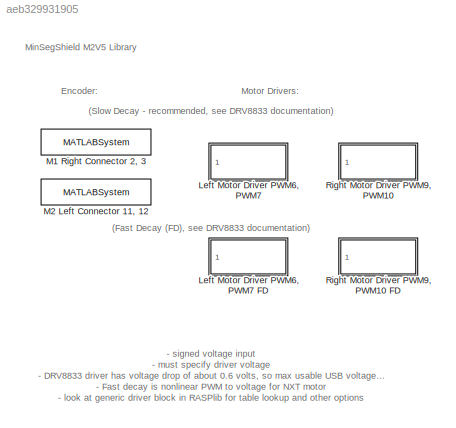
MODEL slx_aeb329931905
KIND library
CONFIG AbsTol = auto
CONFIG FixedStep = auto
CONFIG MaxStep = auto
CONFIG MinStep = auto
CONFIG RelTol = 1e-3
CONFIG SampleTimeConstraint = Unconstrained
CONFIG Solver = ode45
CONFIG SolverMode = Auto
CONFIG SolverName = ode45
CONFIG StartTime = 0.0
CONFIG StopTime = 10.0
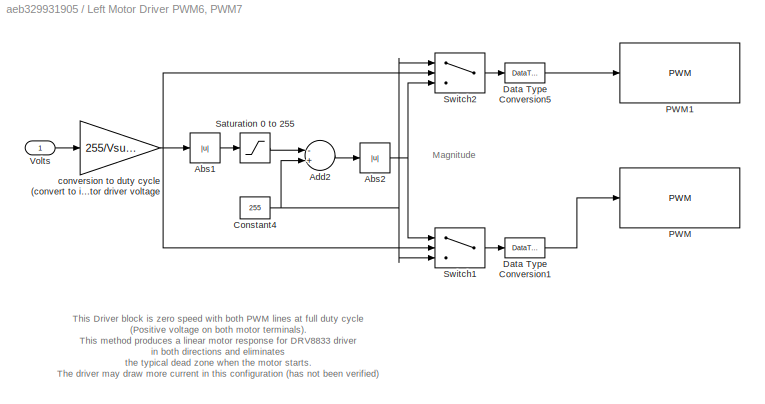
BLOCK [SubSystem] Left Motor Driver PWM6, PWM7
  Ports = [1]
  RequestExecContextInheritance = off
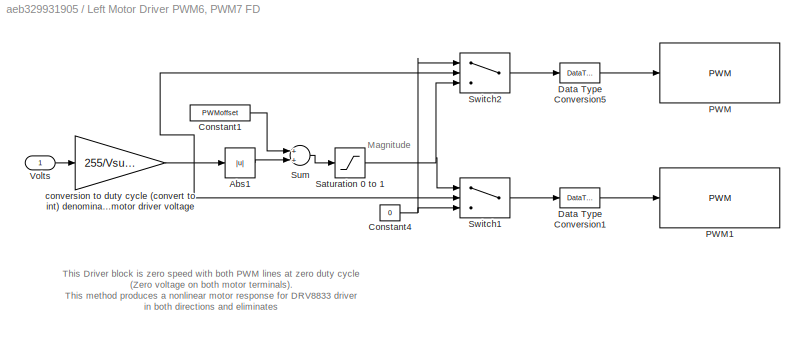
BLOCK [SubSystem] Left Motor Driver PWM6, PWM7 FD
  Ports = [1]
  RequestExecContextInheritance = off
BLOCK [Abs] Left Motor Driver PWM6, PWM7 FD/Abs1
  SaturateOnIntegerOverflow = off
BLOCK [Constant] Left Motor Driver PWM6, PWM7 FD/Constant1
  Value = PWMoffset
BLOCK [Constant] Left Motor Driver PWM6, PWM7 FD/Constant4
  Value = 0
BLOCK [DataTypeConversion] Left Motor Driver PWM6, PWM7 FD/Data Type Conversion1
  OutDataTypeStr = uint8
  RndMeth = Floor
  SaturateOnIntegerOverflow = off
BLOCK [DataTypeConversion] Left Motor Driver PWM6, PWM7 FD/Data Type Conversion5
  OutDataTypeStr = uint8
  RndMeth = Floor
  SaturateOnIntegerOverflow = off
BLOCK [Reference] Left Motor Driver PWM6, PWM7 FD/PWM  REF=arduinolib/PWM
  Ports = [1]
  SourceBlock = arduinolib/PWM
  SourceType = Arduino PWM
  blockPlatform = arduino
  pinNumber = 6
BLOCK [Reference] Left Motor Driver PWM6, PWM7 FD/PWM1  REF=arduinolib/PWM
  Ports = [1]
  SourceBlock = arduinolib/PWM
  SourceType = Arduino PWM
  blockPlatform = arduino
  pinNumber = 7
BLOCK [Saturate] Left Motor Driver PWM6, PWM7 FD/Saturation 0 to 1
  InputPortMap = u0
  LowerLimit = 0
  Ports = [1, 1]
  UpperLimit = 255
BLOCK [Sum] Left Motor Driver PWM6, PWM7 FD/Sum
  InputSameDT = off
  OutDataTypeStr = Inherit: Inherit via internal rule
  Ports = [2, 1]
  SaturateOnIntegerOverflow = off
BLOCK [Switch] Left Motor Driver PWM6, PWM7 FD/Switch1
  InputSameDT = off
  SaturateOnIntegerOverflow = off
BLOCK [Switch] Left Motor Driver PWM6, PWM7 FD/Switch2
  InputSameDT = off
  SaturateOnIntegerOverflow = off
BLOCK [Inport] Left Motor Driver PWM6, PWM7 FD/Volts
  IconDisplay = Port number
BLOCK [Gain] Left Motor Driver PWM6, PWM7 FD/conversion to duty cycle (convert to int) denominator is motor driver voltage
  Gain = 255/Vsupply
  OutDataTypeStr = int16
  ParamDataTypeStr = Inherit: Inherit via internal rule
  SaturateOnIntegerOverflow = off
BLOCK [Abs] Left Motor Driver PWM6, PWM7/Abs1
  SaturateOnIntegerOverflow = off
BLOCK [Abs] Left Motor Driver PWM6, PWM7/Abs2
  SaturateOnIntegerOverflow = off
BLOCK [Sum] Left Motor Driver PWM6, PWM7/Add2
  InputSameDT = off
  Inputs = -+
  OutDataTypeStr = Inherit: Inherit via internal rule
  Ports = [2, 1]
  SaturateOnIntegerOverflow = off
BLOCK [Constant] Left Motor Driver PWM6, PWM7/Constant4
  Value = 255
BLOCK [DataTypeConversion] Left Motor Driver PWM6, PWM7/Data Type Conversion1
  OutDataTypeStr = uint8
  RndMeth = Floor
  SaturateOnIntegerOverflow = off
BLOCK [DataTypeConversion] Left Motor Driver PWM6, PWM7/Data Type Conversion5
  OutDataTypeStr = uint8
  RndMeth = Floor
  SaturateOnIntegerOverflow = off
BLOCK [Reference] Left Motor Driver PWM6, PWM7/PWM  REF=arduinolib/PWM
  Ports = [1]
  SourceBlock = arduinolib/PWM
  SourceType = Arduino PWM
  blockPlatform = arduino
  pinNumber = 7
BLOCK [Reference] Left Motor Driver PWM6, PWM7/PWM1  REF=arduinolib/PWM
  Ports = [1]
  SourceBlock = arduinolib/PWM
  SourceType = Arduino PWM
  blockPlatform = arduino
  pinNumber = 6
BLOCK [Saturate] Left Motor Driver PWM6, PWM7/Saturation 0 to 255
  InputPortMap = u0
  LowerLimit = 0
  Ports = [1, 1]
  UpperLimit = 255
BLOCK [Switch] Left Motor Driver PWM6, PWM7/Switch1
  InputSameDT = off
  SaturateOnIntegerOverflow = off
BLOCK [Switch] Left Motor Driver PWM6, PWM7/Switch2
  InputSameDT = off
  SaturateOnIntegerOverflow = off
BLOCK [Inport] Left Motor Driver PWM6, PWM7/Volts
  IconDisplay = Port number
BLOCK [Gain] Left Motor Driver PWM6, PWM7/conversion to duty cycle (convert to int) denominator is motor driver voltage
  Gain = 255/Vsupply
  OutDataTypeStr = int16
  ParamDataTypeStr = Inherit: Inherit via internal rule
  SaturateOnIntegerOverflow = off
BLOCK [MATLABSystem] M1 Right Connector 2, 3
  Encoder = 0
  MaskDisplay = disp('soEncoder');\nport_label('output',1,'y');
  MaskType = Encoder_arduino
  PinA = 2
  PinB = 3
  Ports = [0, 1]
  System = Encoder_arduino
BLOCK [MATLABSystem] M2 Left Connector 11, 12
  Encoder = 4
  MaskDisplay = disp('soEncoder');\nport_label('output',1,'y');
  MaskType = Encoder_arduino
  PinA = 11
  PinB = 12
  Ports = [0, 1]
  System = Encoder_arduino
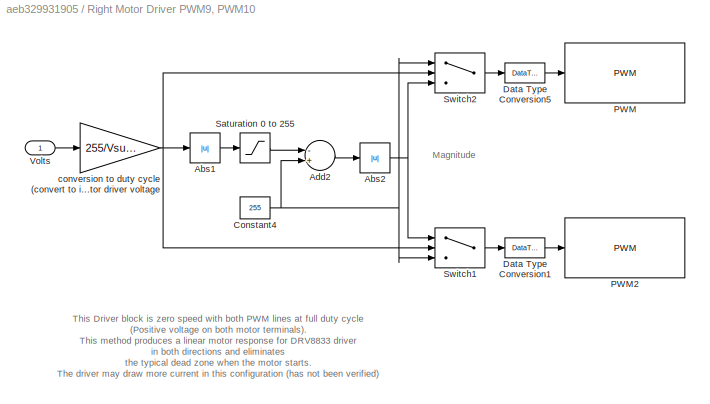
BLOCK [SubSystem] Right Motor Driver PWM9, PWM10 
  Ports = [1]
  RequestExecContextInheritance = off
BLOCK [Abs] Right Motor Driver PWM9, PWM10 /Abs1
  SaturateOnIntegerOverflow = off
BLOCK [Abs] Right Motor Driver PWM9, PWM10 /Abs2
  SaturateOnIntegerOverflow = off
BLOCK [Sum] Right Motor Driver PWM9, PWM10 /Add2
  InputSameDT = off
  Inputs = -+
  OutDataTypeStr = Inherit: Inherit via internal rule
  Ports = [2, 1]
  SaturateOnIntegerOverflow = off
BLOCK [Constant] Right Motor Driver PWM9, PWM10 /Constant4
  Value = 255
BLOCK [DataTypeConversion] Right Motor Driver PWM9, PWM10 /Data Type Conversion1
  OutDataTypeStr = uint8
  RndMeth = Floor
  SaturateOnIntegerOverflow = off
BLOCK [DataTypeConversion] Right Motor Driver PWM9, PWM10 /Data Type Conversion5
  OutDataTypeStr = uint8
  RndMeth = Floor
  SaturateOnIntegerOverflow = off
BLOCK [Reference] Right Motor Driver PWM9, PWM10 /PWM  REF=arduinolib/PWM
  Ports = [1]
  SourceBlock = arduinolib/PWM
  SourceType = Arduino PWM
  blockPlatform = arduino
  pinNumber = 9
BLOCK [Reference] Right Motor Driver PWM9, PWM10 /PWM2  REF=arduinolib/PWM
  Ports = [1]
  SourceBlock = arduinolib/PWM
  SourceType = Arduino PWM
  blockPlatform = arduino
  pinNumber = 10
BLOCK [Saturate] Right Motor Driver PWM9, PWM10 /Saturation 0 to 255
  InputPortMap = u0
  LowerLimit = 0
  Ports = [1, 1]
  UpperLimit = 255
BLOCK [Switch] Right Motor Driver PWM9, PWM10 /Switch1
  InputSameDT = off
  SaturateOnIntegerOverflow = off
BLOCK [Switch] Right Motor Driver PWM9, PWM10 /Switch2
  InputSameDT = off
  SaturateOnIntegerOverflow = off
BLOCK [Inport] Right Motor Driver PWM9, PWM10 /Volts
  IconDisplay = Port number
BLOCK [Gain] Right Motor Driver PWM9, PWM10 /conversion to duty cycle (convert to int) denominator is motor driver voltage
  Gain = 255/Vsupply
  OutDataTypeStr = int16
  ParamDataTypeStr = Inherit: Inherit via internal rule
  SaturateOnIntegerOverflow = off
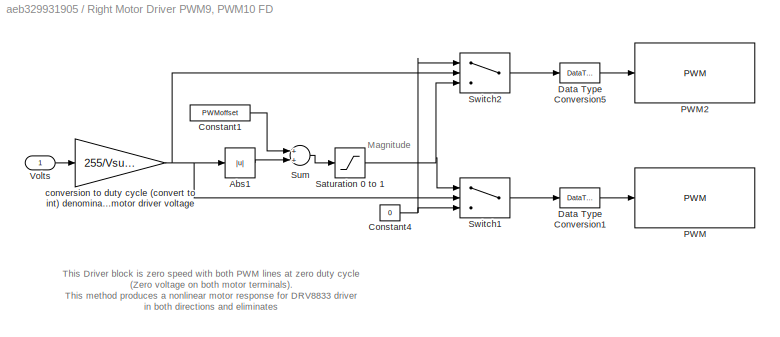
BLOCK [SubSystem] Right Motor Driver PWM9, PWM10 FD
  Ports = [1]
  RequestExecContextInheritance = off
BLOCK [Abs] Right Motor Driver PWM9, PWM10 FD/Abs1
  SaturateOnIntegerOverflow = off
BLOCK [Constant] Right Motor Driver PWM9, PWM10 FD/Constant1
  Value = PWMoffset
BLOCK [Constant] Right Motor Driver PWM9, PWM10 FD/Constant4
  Value = 0
BLOCK [DataTypeConversion] Right Motor Driver PWM9, PWM10 FD/Data Type Conversion1
  OutDataTypeStr = uint8
  RndMeth = Floor
  SaturateOnIntegerOverflow = off
BLOCK [DataTypeConversion] Right Motor Driver PWM9, PWM10 FD/Data Type Conversion5
  OutDataTypeStr = uint8
  RndMeth = Floor
  SaturateOnIntegerOverflow = off
BLOCK [Reference] Right Motor Driver PWM9, PWM10 FD/PWM  REF=arduinolib/PWM
  Ports = [1]
  SourceBlock = arduinolib/PWM
  SourceType = Arduino PWM
  blockPlatform = arduino
  pinNumber = 10
BLOCK [Reference] Right Motor Driver PWM9, PWM10 FD/PWM2  REF=arduinolib/PWM
  Ports = [1]
  SourceBlock = arduinolib/PWM
  SourceType = Arduino PWM
  blockPlatform = arduino
  pinNumber = 9
BLOCK [Saturate] Right Motor Driver PWM9, PWM10 FD/Saturation 0 to 1
  InputPortMap = u0
  LowerLimit = 0
  Ports = [1, 1]
  UpperLimit = 255
BLOCK [Sum] Right Motor Driver PWM9, PWM10 FD/Sum
  InputSameDT = off
  OutDataTypeStr = Inherit: Inherit via internal rule
  Ports = [2, 1]
  SaturateOnIntegerOverflow = off
BLOCK [Switch] Right Motor Driver PWM9, PWM10 FD/Switch1
  InputSameDT = off
  SaturateOnIntegerOverflow = off
BLOCK [Switch] Right Motor Driver PWM9, PWM10 FD/Switch2
  InputSameDT = off
  SaturateOnIntegerOverflow = off
BLOCK [Inport] Right Motor Driver PWM9, PWM10 FD/Volts
  IconDisplay = Port number
BLOCK [Gain] Right Motor Driver PWM9, PWM10 FD/conversion to duty cycle (convert to int) denominator is motor driver voltage
  Gain = 255/Vsupply
  OutDataTypeStr = int16
  ParamDataTypeStr = Inherit: Inherit via internal rule
  SaturateOnIntegerOverflow = off
ANNOTATION (root): (Fast Decay (FD), see DRV8833 documentation)
ANNOTATION (root): (Slow Decay - recommended, see DRV8833 documentation)
ANNOTATION (root): - signed voltage input - must specify driver voltage - DRV8833 driver has voltage drop of about 0.6 volts, so max usable USB voltage is about 3.9 volts - Fast decay is nonlinear PWM to voltage for NXT motor - look at generic driver block in RASPlib for table lookup and other options
ANNOTATION (root): MinSegShield M2V5 Library
ANNOTATION (root): Encoder:
ANNOTATION (root): Motor Drivers:
ANNOTATION Left Motor Driver PWM6, PWM7: Magnitude
ANNOTATION Left Motor Driver PWM6, PWM7: This Driver block is zero speed with both PWM lines at full duty cycle (Positive voltage on both motor terminals). This method produces a linear motor response for DRV8833 driver in both directions and eliminates the typical dead zone when the motor starts. The driver may draw more current in this configuration (has not been verified) The SN754410 driver this has no effect, so the driver could alt...<+76ch>
ANNOTATION Left Motor Driver PWM6, PWM7 FD: Magnitude
ANNOTATION Left Motor Driver PWM6, PWM7 FD: This Driver block is zero speed with both PWM lines at zero duty cycle (Zero voltage on both motor terminals). This method produces a nonlinear motor response for DRV8833 driver in both directions and eliminates
ANNOTATION Right Motor Driver PWM9, PWM10 : Magnitude
ANNOTATION Right Motor Driver PWM9, PWM10 : This Driver block is zero speed with both PWM lines at full duty cycle (Positive voltage on both motor terminals). This method produces a linear motor response for DRV8833 driver in both directions and eliminates the typical dead zone when the motor starts. The driver may draw more current in this configuration (has not been verified) The SN754410 driver this has no effect, so the driver could alt...<+76ch>
ANNOTATION Right Motor Driver PWM9, PWM10 FD: Magnitude
ANNOTATION Right Motor Driver PWM9, PWM10 FD: This Driver block is zero speed with both PWM lines at zero duty cycle (Zero voltage on both motor terminals). This method produces a nonlinear motor response for DRV8833 driver in both directions and eliminates
LINE Left Motor Driver PWM6, PWM7 FD/Abs1:1 -> Left Motor Driver PWM6, PWM7 FD/Sum:2
LINE Left Motor Driver PWM6, PWM7 FD/Constant1:1 -> Left Motor Driver PWM6, PWM7 FD/Sum:1
NET Left Motor Driver PWM6, PWM7 FD/Constant4:1 -> Left Motor Driver PWM6, PWM7 FD/Switch1:3, Left Motor Driver PWM6, PWM7 FD/Switch2:1
LINE Left Motor Driver PWM6, PWM7 FD/Data Type Conversion1:1 -> Left Motor Driver PWM6, PWM7 FD/PWM1:1
LINE Left Motor Driver PWM6, PWM7 FD/Data Type Conversion5:1 -> Left Motor Driver PWM6, PWM7 FD/PWM:1
NET Left Motor Driver PWM6, PWM7 FD/Saturation 0 to 1:1 -> Left Motor Driver PWM6, PWM7 FD/Switch1:1, Left Motor Driver PWM6, PWM7 FD/Switch2:3
LINE Left Motor Driver PWM6, PWM7 FD/Sum:1 -> Left Motor Driver PWM6, PWM7 FD/Saturation 0 to 1:1
LINE Left Motor Driver PWM6, PWM7 FD/Switch1:1 -> Left Motor Driver PWM6, PWM7 FD/Data Type Conversion1:1
LINE Left Motor Driver PWM6, PWM7 FD/Switch2:1 -> Left Motor Driver PWM6, PWM7 FD/Data Type Conversion5:1
LINE Left Motor Driver PWM6, PWM7 FD/Volts:1 -> Left Motor Driver PWM6, PWM7 FD/conversion to duty cycle (convert to int) denominator is motor driver voltage:1
NET Left Motor Driver PWM6, PWM7 FD/conversion to duty cycle (convert to int) denominator is motor driver voltage:1 -> Left Motor Driver PWM6, PWM7 FD/Abs1:1, Left Motor Driver PWM6, PWM7 FD/Switch1:2, Left Motor Driver PWM6, PWM7 FD/Switch2:2
LINE Left Motor Driver PWM6, PWM7/Abs1:1 -> Left Motor Driver PWM6, PWM7/Saturation 0 to 255:1
NET Left Motor Driver PWM6, PWM7/Abs2:1 -> Left Motor Driver PWM6, PWM7/Switch1:1, Left Motor Driver PWM6, PWM7/Switch2:3
LINE Left Motor Driver PWM6, PWM7/Add2:1 -> Left Motor Driver PWM6, PWM7/Abs2:1
NET Left Motor Driver PWM6, PWM7/Constant4:1 -> Left Motor Driver PWM6, PWM7/Add2:2, Left Motor Driver PWM6, PWM7/Switch1:3, Left Motor Driver PWM6, PWM7/Switch2:1
LINE Left Motor Driver PWM6, PWM7/Data Type Conversion1:1 -> Left Motor Driver PWM6, PWM7/PWM:1
LINE Left Motor Driver PWM6, PWM7/Data Type Conversion5:1 -> Left Motor Driver PWM6, PWM7/PWM1:1
LINE Left Motor Driver PWM6, PWM7/Saturation 0 to 255:1 -> Left Motor Driver PWM6, PWM7/Add2:1
LINE Left Motor Driver PWM6, PWM7/Switch1:1 -> Left Motor Driver PWM6, PWM7/Data Type Conversion1:1
LINE Left Motor Driver PWM6, PWM7/Switch2:1 -> Left Motor Driver PWM6, PWM7/Data Type Conversion5:1
LINE Left Motor Driver PWM6, PWM7/Volts:1 -> Left Motor Driver PWM6, PWM7/conversion to duty cycle (convert to int) denominator is motor driver voltage:1
NET Left Motor Driver PWM6, PWM7/conversion to duty cycle (convert to int) denominator is motor driver voltage:1 -> Left Motor Driver PWM6, PWM7/Abs1:1, Left Motor Driver PWM6, PWM7/Switch1:2, Left Motor Driver PWM6, PWM7/Switch2:2
LINE Right Motor Driver PWM9, PWM10 /Abs1:1 -> Right Motor Driver PWM9, PWM10 /Saturation 0 to 255:1
NET Right Motor Driver PWM9, PWM10 /Abs2:1 -> Right Motor Driver PWM9, PWM10 /Switch1:1, Right Motor Driver PWM9, PWM10 /Switch2:3
LINE Right Motor Driver PWM9, PWM10 /Add2:1 -> Right Motor Driver PWM9, PWM10 /Abs2:1
NET Right Motor Driver PWM9, PWM10 /Constant4:1 -> Right Motor Driver PWM9, PWM10 /Add2:2, Right Motor Driver PWM9, PWM10 /Switch1:3, Right Motor Driver PWM9, PWM10 /Switch2:1
LINE Right Motor Driver PWM9, PWM10 /Data Type Conversion1:1 -> Right Motor Driver PWM9, PWM10 /PWM2:1
LINE Right Motor Driver PWM9, PWM10 /Data Type Conversion5:1 -> Right Motor Driver PWM9, PWM10 /PWM:1
LINE Right Motor Driver PWM9, PWM10 /Saturation 0 to 255:1 -> Right Motor Driver PWM9, PWM10 /Add2:1
LINE Right Motor Driver PWM9, PWM10 /Switch1:1 -> Right Motor Driver PWM9, PWM10 /Data Type Conversion1:1
LINE Right Motor Driver PWM9, PWM10 /Switch2:1 -> Right Motor Driver PWM9, PWM10 /Data Type Conversion5:1
LINE Right Motor Driver PWM9, PWM10 /Volts:1 -> Right Motor Driver PWM9, PWM10 /conversion to duty cycle (convert to int) denominator is motor driver voltage:1
NET Right Motor Driver PWM9, PWM10 /conversion to duty cycle (convert to int) denominator is motor driver voltage:1 -> Right Motor Driver PWM9, PWM10 /Abs1:1, Right Motor Driver PWM9, PWM10 /Switch1:2, Right Motor Driver PWM9, PWM10 /Switch2:2
LINE Right Motor Driver PWM9, PWM10 FD/Abs1:1 -> Right Motor Driver PWM9, PWM10 FD/Sum:2
LINE Right Motor Driver PWM9, PWM10 FD/Constant1:1 -> Right Motor Driver PWM9, PWM10 FD/Sum:1
NET Right Motor Driver PWM9, PWM10 FD/Constant4:1 -> Right Motor Driver PWM9, PWM10 FD/Switch1:3, Right Motor Driver PWM9, PWM10 FD/Switch2:1
LINE Right Motor Driver PWM9, PWM10 FD/Data Type Conversion1:1 -> Right Motor Driver PWM9, PWM10 FD/PWM:1
LINE Right Motor Driver PWM9, PWM10 FD/Data Type Conversion5:1 -> Right Motor Driver PWM9, PWM10 FD/PWM2:1
NET Right Motor Driver PWM9, PWM10 FD/Saturation 0 to 1:1 -> Right Motor Driver PWM9, PWM10 FD/Switch1:1, Right Motor Driver PWM9, PWM10 FD/Switch2:3
LINE Right Motor Driver PWM9, PWM10 FD/Sum:1 -> Right Motor Driver PWM9, PWM10 FD/Saturation 0 to 1:1
LINE Right Motor Driver PWM9, PWM10 FD/Switch1:1 -> Right Motor Driver PWM9, PWM10 FD/Data Type Conversion1:1
LINE Right Motor Driver PWM9, PWM10 FD/Switch2:1 -> Right Motor Driver PWM9, PWM10 FD/Data Type Conversion5:1
LINE Right Motor Driver PWM9, PWM10 FD/Volts:1 -> Right Motor Driver PWM9, PWM10 FD/conversion to duty cycle (convert to int) denominator is motor driver voltage:1
NET Right Motor Driver PWM9, PWM10 FD/conversion to duty cycle (convert to int) denominator is motor driver voltage:1 -> Right Motor Driver PWM9, PWM10 FD/Abs1:1, Right Motor Driver PWM9, PWM10 FD/Switch1:2, Right Motor Driver PWM9, PWM10 FD/Switch2:2
note: NET lines group one-source signal fan-out (src -> all destinations, sorted); 1:1 wires keep LINE
